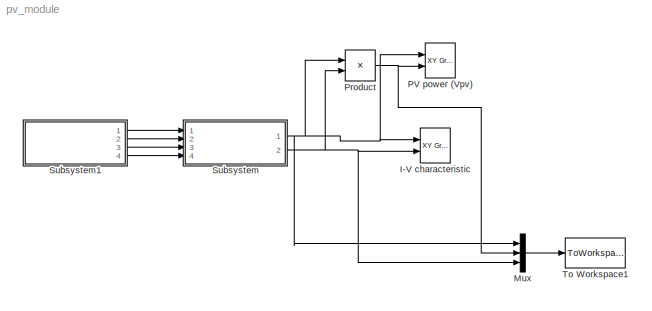
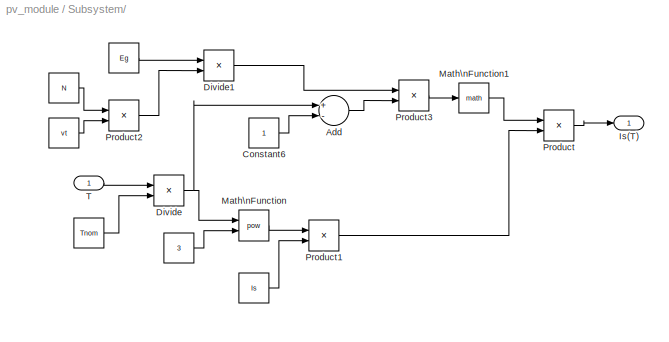
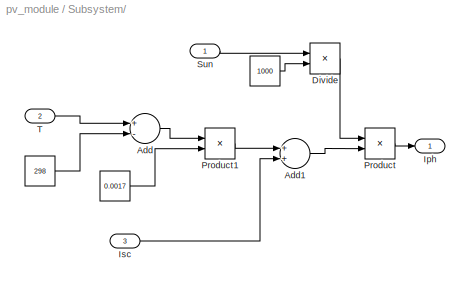
MODEL pv_module
KIND model
BLOCK [Reference] I-V characteristic  REF=simulink/Sinks/XY Graph
  Ports = [2]
  SID = 82
  SourceBlock = simulink/Sinks/XY Graph
  SourceProductBaseCode = SL
  SourceProductName = Simulink
  SourceType = XY scope.
  st = -1
  xmax = 25
  xmin = 0
  ymax = 4
  ymin = 0
BLOCK [Mux] Mux
  DisplayOption = bar
  Inputs = 3
  Ports = [3, 1]
  SID = 87
BLOCK [Reference] PV power (Vpv)  REF=simulink/Sinks/XY Graph
  Ports = [2]
  SID = 85
  SourceBlock = simulink/Sinks/XY Graph
  SourceProductBaseCode = SL
  SourceProductName = Simulink
  SourceType = XY scope.
  st = -1
  xmax = 25
  xmin = 0
  ymax = 70
  ymin = 0
BLOCK [Product] Product
  InputSameDT = off
  OutDataTypeStr = Inherit: Inherit via internal rule
  Ports = [2, 1]
  SID = 84
  SaturateOnIntegerOverflow = off
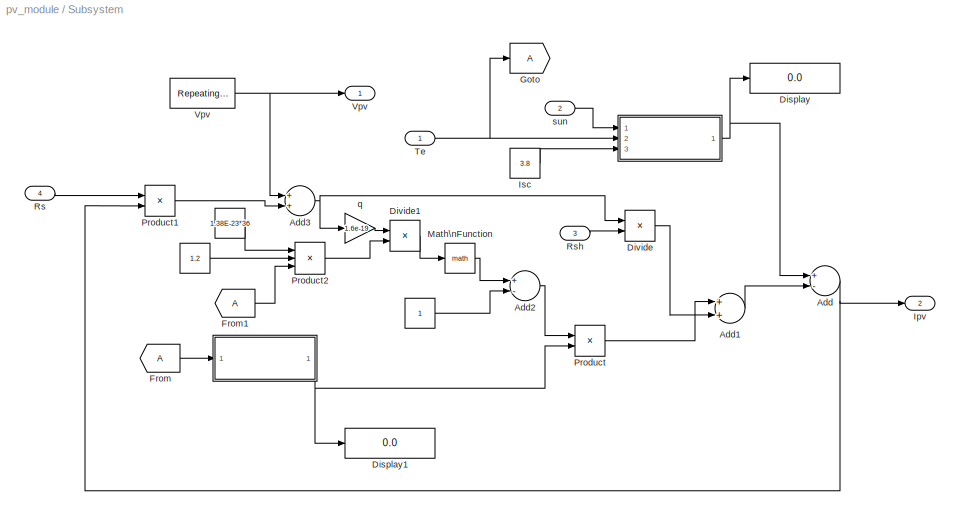
BLOCK [SubSystem] Subsystem
  Ports = [4, 2]
  RequestExecContextInheritance = off
  SID = 1
  Variant = off
BLOCK [SubSystem] Subsystem/  
  Ports = [3, 1]
  RequestExecContextInheritance = off
  SID = 31
  Variant = off
BLOCK [SubSystem] Subsystem/   
  Ports = [1, 1]
  RequestExecContextInheritance = off
  SID = 44
  Variant = off
BLOCK [Constant] Subsystem/           
  SID = 11
BLOCK [Constant] Subsystem/              
  SID = 10
  Value = 1.2
BLOCK [Constant] Subsystem/               
  SID = 8
  Value = 1.38E-23*36
BLOCK [Constant] Subsystem/   /  
  SID = 46
  Value = 3
BLOCK [Constant] Subsystem/   /      
  SID = 47
  Value = Is
BLOCK [Constant] Subsystem/   /        
  SID = 48
  Value = Tnom
BLOCK [Constant] Subsystem/   /                      
  SID = 49
  Value = Eg
BLOCK [Constant] Subsystem/   /                              
  SID = 50
  Value = N
BLOCK [Constant] Subsystem/   /                               
  SID = 51
  Value = vt
BLOCK [Sum] Subsystem/   /Add
  InputSameDT = off
  Inputs = +-
  OutDataTypeStr = Inherit: Inherit via internal rule
  Ports = [2, 1]
  SID = 52
  SaturateOnIntegerOverflow = off
BLOCK [Constant] Subsystem/   /Constant6
  SID = 53
BLOCK [Product] Subsystem/   /Divide
  InputSameDT = off
  Inputs = */
  OutDataTypeStr = Inherit: Inherit via internal rule
  Ports = [2, 1]
  RndMeth = Floor
  SID = 54
  SaturateOnIntegerOverflow = off
BLOCK [Product] Subsystem/   /Divide1
  InputSameDT = off
  Inputs = */
  OutDataTypeStr = Inherit: Inherit via internal rule
  Ports = [2, 1]
  RndMeth = Floor
  SID = 55
  SaturateOnIntegerOverflow = off
BLOCK [Outport] Subsystem/   /Is(T)
  IconDisplay = Port number
  SID = 62
BLOCK [Math] Subsystem/   /Math\nFunction
  Operator = pow
  Ports = [2, 1]
  SID = 56
BLOCK [Math] Subsystem/   /Math\nFunction1
  Ports = [1, 1]
  SID = 57
BLOCK [Product] Subsystem/   /Product
  InputSameDT = off
  OutDataTypeStr = Inherit: Inherit via internal rule
  Ports = [2, 1]
  SID = 58
  SaturateOnIntegerOverflow = off
BLOCK [Product] Subsystem/   /Product1
  InputSameDT = off
  OutDataTypeStr = Inherit: Inherit via internal rule
  Ports = [2, 1]
  SID = 59
  SaturateOnIntegerOverflow = off
BLOCK [Product] Subsystem/   /Product2
  InputSameDT = off
  OutDataTypeStr = Inherit: Inherit via internal rule
  Ports = [2, 1]
  SID = 60
  SaturateOnIntegerOverflow = off
BLOCK [Product] Subsystem/   /Product3
  InputSameDT = off
  OutDataTypeStr = Inherit: Inherit via internal rule
  Ports = [2, 1]
  SID = 61
  SaturateOnIntegerOverflow = off
BLOCK [Inport] Subsystem/   /T
  IconDisplay = Port number
  SID = 45
BLOCK [Constant] Subsystem/  /   
  SID = 39
  Value = 0.0017
BLOCK [Constant] Subsystem/  /    
  SID = 37
  Value = 1000
BLOCK [Constant] Subsystem/  /      
  SID = 38
  Value = 298
BLOCK [Sum] Subsystem/  /Add
  InputSameDT = off
  Inputs = +-
  OutDataTypeStr = Inherit: Inherit via internal rule
  Ports = [2, 1]
  SID = 35
  SaturateOnIntegerOverflow = off
BLOCK [Sum] Subsystem/  /Add1
  InputSameDT = off
  OutDataTypeStr = Inherit: Inherit via internal rule
  Ports = [2, 1]
  SID = 36
  SaturateOnIntegerOverflow = off
BLOCK [Product] Subsystem/  /Divide
  InputSameDT = off
  Inputs = */
  OutDataTypeStr = Inherit: Inherit via internal rule
  Ports = [2, 1]
  RndMeth = Floor
  SID = 40
  SaturateOnIntegerOverflow = off
BLOCK [Outport] Subsystem/  /Iph
  IconDisplay = Port number
  SID = 43
BLOCK [Inport] Subsystem/  /Isc
  IconDisplay = Port number
  Port = 3
  SID = 34
BLOCK [Product] Subsystem/  /Product
  InputSameDT = off
  OutDataTypeStr = Inherit: Inherit via internal rule
  Ports = [2, 1]
  SID = 41
  SaturateOnIntegerOverflow = off
BLOCK [Product] Subsystem/  /Product1
  InputSameDT = off
  OutDataTypeStr = Inherit: Inherit via internal rule
  Ports = [2, 1]
  SID = 42
  SaturateOnIntegerOverflow = off
BLOCK [Inport] Subsystem/  /Sun
  IconDisplay = Port number
  SID = 32
BLOCK [Inport] Subsystem/  /T
  IconDisplay = Port number
  Port = 2
  SID = 33
BLOCK [Sum] Subsystem/Add
  InputSameDT = off
  Inputs = +-
  OutDataTypeStr = Inherit: Inherit via internal rule
  Ports = [2, 1]
  SID = 4
  SaturateOnIntegerOverflow = off
BLOCK [Sum] Subsystem/Add1
  InputSameDT = off
  OutDataTypeStr = Inherit: Inherit via internal rule
  Ports = [2, 1]
  SID = 5
  SaturateOnIntegerOverflow = off
BLOCK [Sum] Subsystem/Add2
  InputSameDT = off
  Inputs = +-
  OutDataTypeStr = Inherit: Inherit via internal rule
  Ports = [2, 1]
  SID = 6
  SaturateOnIntegerOverflow = off
BLOCK [Sum] Subsystem/Add3
  InputSameDT = off
  OutDataTypeStr = Inherit: Inherit via internal rule
  Ports = [2, 1]
  SID = 7
  SaturateOnIntegerOverflow = off
BLOCK [Display] Subsystem/Display
  Decimation = 1
  Ports = [1]
  SID = 12
BLOCK [Display] Subsystem/Display1
  Decimation = 1
  Ports = [1]
  SID = 13
BLOCK [Product] Subsystem/Divide
  InputSameDT = off
  Inputs = */
  OutDataTypeStr = Inherit: Inherit via internal rule
  Ports = [2, 1]
  RndMeth = Floor
  SID = 14
  SaturateOnIntegerOverflow = off
BLOCK [Product] Subsystem/Divide1
  InputSameDT = off
  Inputs = */
  OutDataTypeStr = Inherit: Inherit via internal rule
  Ports = [2, 1]
  RndMeth = Floor
  SID = 15
  SaturateOnIntegerOverflow = off
BLOCK [From] Subsystem/From
  SID = 16
BLOCK [From] Subsystem/From1
  SID = 17
BLOCK [Goto] Subsystem/Goto
  SID = 19
BLOCK [Outport] Subsystem/Ipv
  IconDisplay = Port number
  Port = 2
  SID = 70
BLOCK [Constant] Subsystem/Isc
  SID = 21
  Value = 3.8
BLOCK [Math] Subsystem/Math\nFunction
  Ports = [1, 1]
  SID = 22
BLOCK [Product] Subsystem/Product
  InputSameDT = off
  OutDataTypeStr = Inherit: Inherit via internal rule
  Ports = [2, 1]
  SID = 25
  SaturateOnIntegerOverflow = off
BLOCK [Product] Subsystem/Product1
  InputSameDT = off
  OutDataTypeStr = Inherit: Inherit via internal rule
  Ports = [2, 1]
  SID = 68
  SaturateOnIntegerOverflow = off
BLOCK [Product] Subsystem/Product2
  InputSameDT = off
  Inputs = 3
  OutDataTypeStr = Inherit: Inherit via internal rule
  Ports = [3, 1]
  SID = 27
  SaturateOnIntegerOverflow = off
BLOCK [Inport] Subsystem/Rs
  IconDisplay = Port number
  Port = 4
  SID = 69
BLOCK [Inport] Subsystem/Rsh
  IconDisplay = Port number
  Port = 3
  SID = 67
BLOCK [Inport] Subsystem/Te
  IconDisplay = Port number
  SID = 2
BLOCK [Outport] Subsystem/Vpv
  IconDisplay = Port number
  SID = 3
BLOCK [Reference] Subsystem/Vpv        REF=simulink/Sources/Repeating\nSequence
  Ports = [0, 1]
  SID = 65
  SourceBlock = simulink/Sources/Repeating\nSequence
  SourceProductBaseCode = SL
  SourceProductName = Simulink
  SourceType = Repeating table
  rep_seq_t = [0 1 2]
  rep_seq_y = [-0.1  21.5 -0.1]
BLOCK [Gain] Subsystem/q
  Gain = 1.6e-19
  OutDataTypeStr = Inherit: Inherit via internal rule
  ParamDataTypeStr = Inherit: Inherit via internal rule
  SID = 30
  SaturateOnIntegerOverflow = off
BLOCK [Inport] Subsystem/sun
  IconDisplay = Port number
  Port = 2
  SID = 66
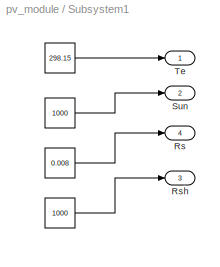
BLOCK [SubSystem] Subsystem1
  Ports = [0, 4]
  RequestExecContextInheritance = off
  SID = 71
  Variant = off
BLOCK [Constant] Subsystem1/  
  SID = 77
  Value = 298.15
BLOCK [Constant] Subsystem1/   
  SID = 78
  Value = 1000
BLOCK [Constant] Subsystem1/    
  SID = 80
  Value = 0.008
BLOCK [Constant] Subsystem1/                            
  SID = 79
  Value = 1000
BLOCK [Outport] Subsystem1/Rs
  IconDisplay = Port number
  Port = 4
  SID = 75
BLOCK [Outport] Subsystem1/Rsh
  IconDisplay = Port number
  Port = 3
  SID = 76
BLOCK [Outport] Subsystem1/Sun
  IconDisplay = Port number
  Port = 2
  SID = 74
BLOCK [Outport] Subsystem1/Te
  IconDisplay = Port number
  SID = 73
BLOCK [ToWorkspace] To Workspace1
  MaxDataPoints = inf
  Ports = [1]
  SID = 86
  SampleTime = -1
  SaveFormat = Structure With Time
  VariableName = PV
LINE Mux:1 -> To Workspace1:1
NET Product:1 -> Mux:2, PV power (Vpv):2
LINE Subsystem/               :1 -> Subsystem/Product2:1
LINE Subsystem/              :1 -> Subsystem/Product2:2
LINE Subsystem/           :1 -> Subsystem/Add2:2
LINE Subsystem/   /                               :1 -> Subsystem/   /Product2:2
LINE Subsystem/   /                              :1 -> Subsystem/   /Product2:1
LINE Subsystem/   /                      :1 -> Subsystem/   /Divide1:1
LINE Subsystem/   /        :1 -> Subsystem/   /Divide:2
LINE Subsystem/   /      :1 -> Subsystem/   /Product1:2
LINE Subsystem/   /  :1 -> Subsystem/   /Math\nFunction:2
LINE Subsystem/   /Add:1 -> Subsystem/   /Product3:2
LINE Subsystem/   /Constant6:1 -> Subsystem/   /Add:2
LINE Subsystem/   /Divide1:1 -> Subsystem/   /Product3:1
NET Subsystem/   /Divide:1 -> Subsystem/   /Add:1, Subsystem/   /Math\nFunction:1
LINE Subsystem/   /Math\nFunction1:1 -> Subsystem/   /Product:1
LINE Subsystem/   /Math\nFunction:1 -> Subsystem/   /Product1:1
LINE Subsystem/   /Product1:1 -> Subsystem/   /Product:2
LINE Subsystem/   /Product2:1 -> Subsystem/   /Divide1:2
LINE Subsystem/   /Product3:1 -> Subsystem/   /Math\nFunction1:1
LINE Subsystem/   /Product:1 -> Subsystem/   /Is(T):1
LINE Subsystem/   /T:1 -> Subsystem/   /Divide:1
NET Subsystem/   :1 -> Subsystem/Display1:1, Subsystem/Product:2
LINE Subsystem/  /      :1 -> Subsystem/  /Add:2
LINE Subsystem/  /    :1 -> Subsystem/  /Divide:2
LINE Subsystem/  /   :1 -> Subsystem/  /Product1:2
LINE Subsystem/  /Add1:1 -> Subsystem/  /Product:2
LINE Subsystem/  /Add:1 -> Subsystem/  /Product1:1
LINE Subsystem/  /Divide:1 -> Subsystem/  /Product:1
LINE Subsystem/  /Isc:1 -> Subsystem/  /Add1:2
LINE Subsystem/  /Product1:1 -> Subsystem/  /Add1:1
LINE Subsystem/  /Product:1 -> Subsystem/  /Iph:1
LINE Subsystem/  /Sun:1 -> Subsystem/  /Divide:1
LINE Subsystem/  /T:1 -> Subsystem/  /Add:1
NET Subsystem/  :1 -> Subsystem/Add:1, Subsystem/Display:1
LINE Subsystem/Add1:1 -> Subsystem/Add:2
LINE Subsystem/Add2:1 -> Subsystem/Product:1
NET Subsystem/Add3:1 -> Subsystem/Divide:1, Subsystem/q:1
NET Subsystem/Add:1 -> Subsystem/Ipv:1, Subsystem/Product1:2
LINE Subsystem/Divide1:1 -> Subsystem/Math\nFunction:1
LINE Subsystem/Divide:1 -> Subsystem/Add1:2
LINE Subsystem/From1:1 -> Subsystem/Product2:3
LINE Subsystem/From:1 -> Subsystem/   :1
LINE Subsystem/Isc:1 -> Subsystem/  :3
LINE Subsystem/Math\nFunction:1 -> Subsystem/Add2:1
LINE Subsystem/Product1:1 -> Subsystem/Add3:2
LINE Subsystem/Product2:1 -> Subsystem/Divide1:2
LINE Subsystem/Product:1 -> Subsystem/Add1:1
LINE Subsystem/Rs:1 -> Subsystem/Product1:1
LINE Subsystem/Rsh:1 -> Subsystem/Divide:2
NET Subsystem/Te:1 -> Subsystem/  :2, Subsystem/Goto:1
NET Subsystem/Vpv      :1 -> Subsystem/Add3:1, Subsystem/Vpv:1
LINE Subsystem/q:1 -> Subsystem/Divide1:1
LINE Subsystem/sun:1 -> Subsystem/  :1
LINE Subsystem1/                            :1 -> Subsystem1/Rsh:1
LINE Subsystem1/    :1 -> Subsystem1/Rs:1
LINE Subsystem1/   :1 -> Subsystem1/Sun:1
LINE Subsystem1/  :1 -> Subsystem1/Te:1
LINE Subsystem1:1 -> Subsystem:1
LINE Subsystem1:2 -> Subsystem:2
LINE Subsystem1:3 -> Subsystem:3
LINE Subsystem1:4 -> Subsystem:4
NET Subsystem:1 -> I-V characteristic:1, Mux:1, PV power (Vpv):1, Product:1
NET Subsystem:2 -> I-V characteristic:2, Mux:3, Product:2
note: NET lines group one-source signal fan-out (src -> all destinations, sorted); 1:1 wires keep LINE
